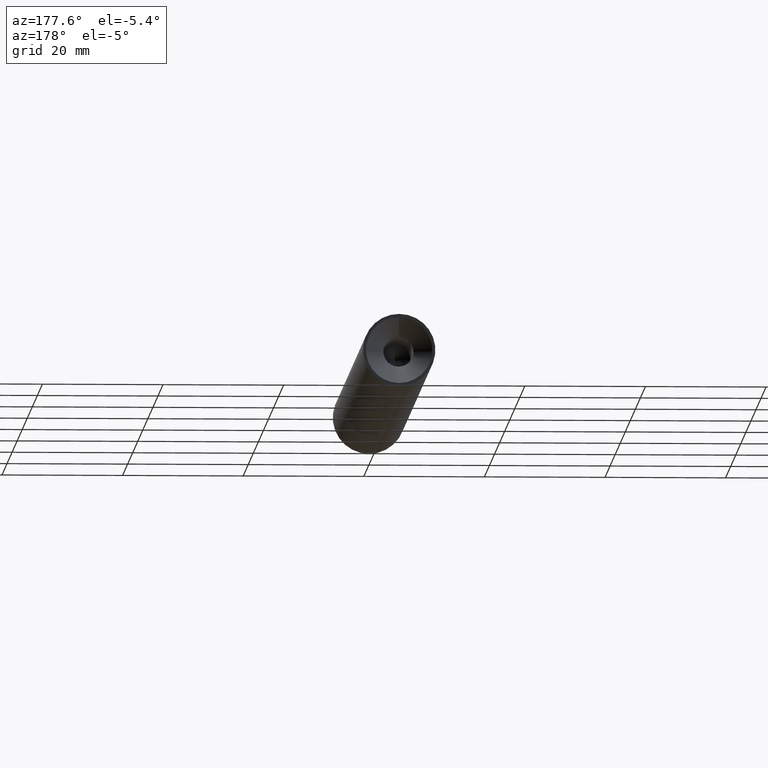
[diagram: clean part render]
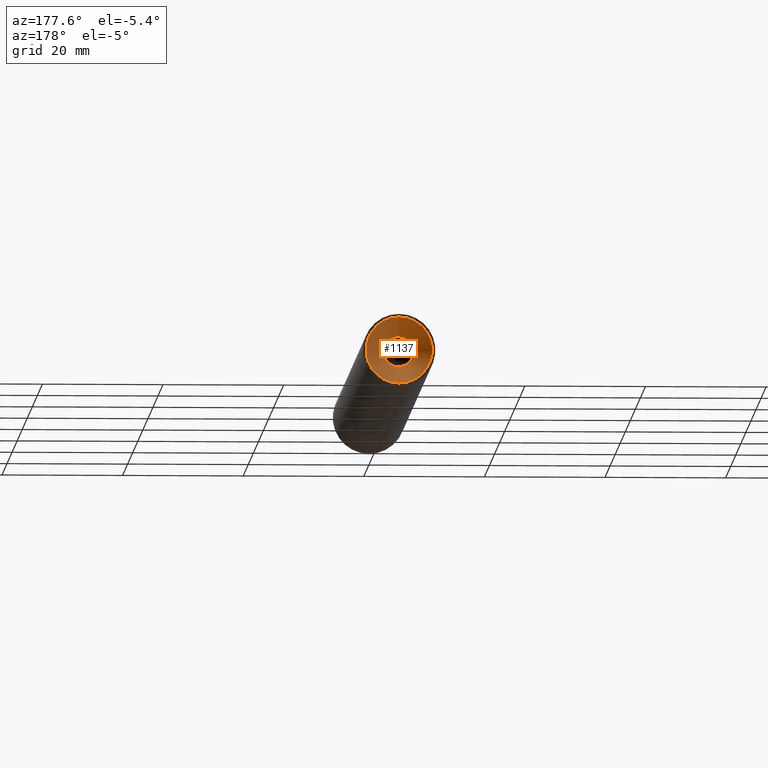
[diagram: same view with one face highlighted and labeled with its STEP entity id]
A machine part, auxiliary view. The second image highlights one B-rep face of the part: STEP entity #1137.
In plain terms, the highlighted conical surface has half-angle 45 deg.
Its self-contained STEP definition (entity closure, byte-faithful):
#1044 = EDGE_CURVE ( 'NONE', #7219, #7219, #2617, .T. ) ;
#1137 = ADVANCED_FACE ( 'NONE', ( #10915, #3627 ), #8735, .F. ) ;
#1295 = EDGE_LOOP ( 'NONE', ( #10656 ) ) ;
#2024 = DIRECTION ( 'NONE',  ( 0.0000000000000000000, 0.0000000000000000000, 1.000000000000000000 ) ) ;
#2428 = CARTESIAN_POINT ( 'NONE',  ( 0.0000000000000000000, 60.00000000000000000, 0.0000000000000000000 ) ) ;
#2617 = CIRCLE ( 'NONE', #7699, 5.500000000000000000 ) ;
#3053 = DIRECTION ( 'NONE',  ( 0.0000000000000000000, 0.0000000000000000000, 1.000000000000000000 ) ) ;
#3627 = FACE_OUTER_BOUND ( 'NONE', #1295, .T. ) ;
#4289 = DIRECTION ( 'NONE',  ( -0.0000000000000000000, 1.000000000000000000, -0.0000000000000000000 ) ) ;
#4313 = EDGE_CURVE ( 'NONE', #7773, #7773, #5123, .T. ) ;
#4958 = EDGE_LOOP ( 'NONE', ( #11417 ) ) ;
#5123 = CIRCLE ( 'NONE', #8431, 2.499999999999997300 ) ;
#5815 = CARTESIAN_POINT ( 'NONE',  ( 0.0000000000000000000, 56.99999999999999300, 2.499999999999997300 ) ) ;
#5849 = CARTESIAN_POINT ( 'NONE',  ( 0.0000000000000000000, 60.00000000000000000, 0.0000000000000000000 ) ) ;
#5891 = DIRECTION ( 'NONE',  ( -0.0000000000000000000, 1.000000000000000000, -0.0000000000000000000 ) ) ;
#6914 = CARTESIAN_POINT ( 'NONE',  ( 0.0000000000000000000, 60.00000000000000000, 5.500000000000000000 ) ) ;
#7182 = AXIS2_PLACEMENT_3D ( 'NONE', #5849, #5891, #3053 ) ;
#7219 = VERTEX_POINT ( 'NONE', #6914 ) ;
#7597 = CARTESIAN_POINT ( 'NONE',  ( 0.0000000000000000000, 56.99999999999999300, 0.0000000000000000000 ) ) ;
#7699 = AXIS2_PLACEMENT_3D ( 'NONE', #2428, #4289, #7982 ) ;
#7773 = VERTEX_POINT ( 'NONE', #5815 ) ;
#7982 = DIRECTION ( 'NONE',  ( 0.0000000000000000000, 0.0000000000000000000, 1.000000000000000000 ) ) ;
#8431 = AXIS2_PLACEMENT_3D ( 'NONE', #7597, #10287, #2024 ) ;
#8735 = CONICAL_SURFACE ( 'NONE', #7182, 5.500000000000000000, 0.7853981633974479500 ) ;
#10287 = DIRECTION ( 'NONE',  ( 0.0000000000000000000, -1.000000000000000000, 0.0000000000000000000 ) ) ;
#10656 = ORIENTED_EDGE ( 'NONE', *, *, #1044, .T. ) ;
#10915 = FACE_BOUND ( 'NONE', #4958, .T. ) ;
#11417 = ORIENTED_EDGE ( 'NONE', *, *, #4313, .T. ) ;